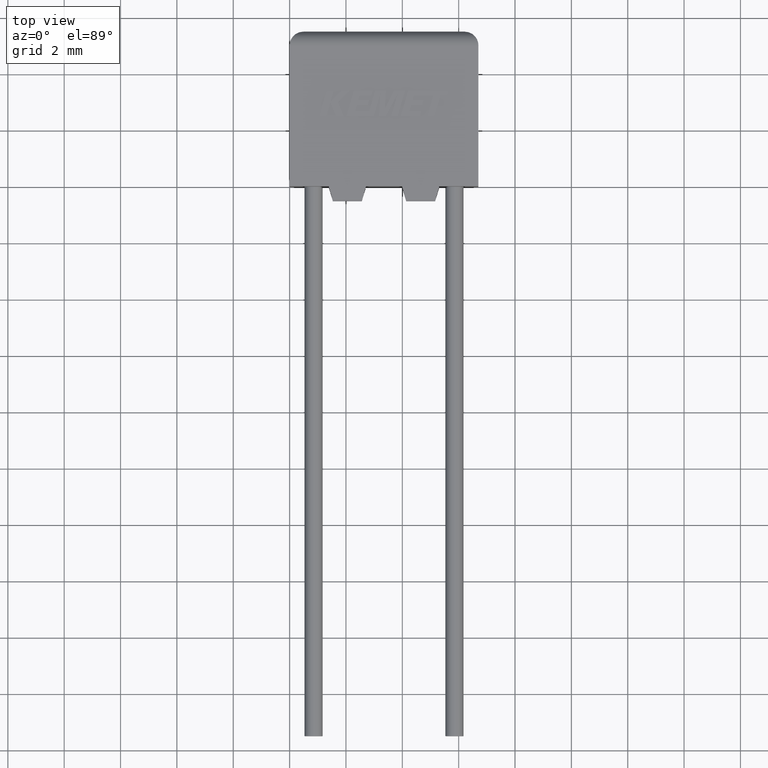
[diagram: clean part render]
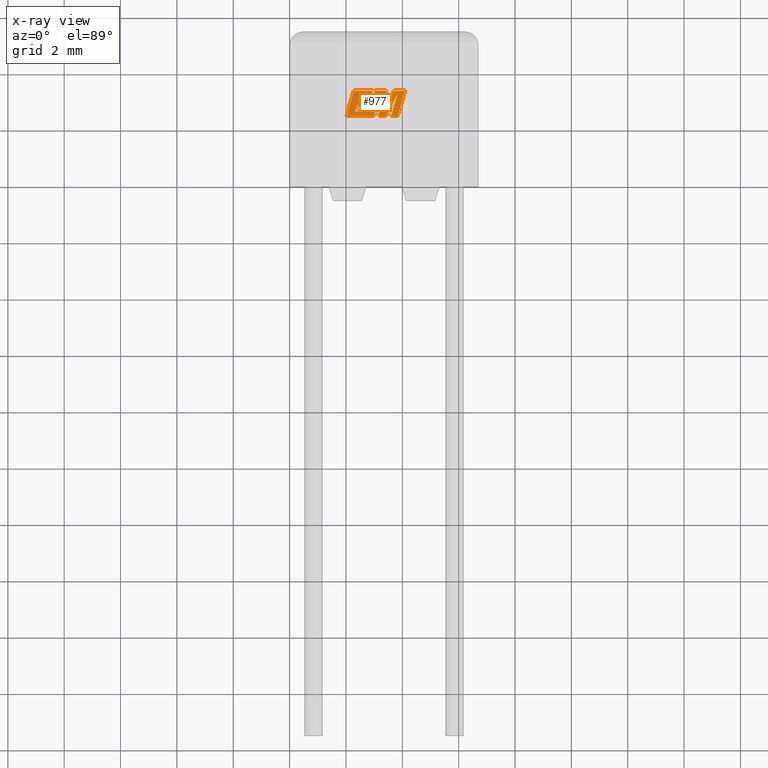
[diagram: x-ray — body ghosted, one internal face saturated and labeled with its STEP entity id]
A machine part, top view, then the same camera in x-ray: the body is ghosted and one INTERNAL B-rep face — a face not visible from any outside direction — is saturated and labeled: STEP entity #977.
In plain terms, the highlighted planar face has unit normal (0, 0, -1).
Its self-contained STEP definition (entity closure, byte-faithful):
#13 = VECTOR ( 'NONE', #297, 1000.000000000000200 ) ;
#80 = DIRECTION ( 'NONE',  ( -0.05596501978068205200, -0.9984327301130245800, 0.0000000000000000000 ) ) ;
#87 = EDGE_CURVE ( 'NONE', #1916, #1455, #217, .T. ) ;
#131 = DIRECTION ( 'NONE',  ( 0.2732148821745925000, 0.9619530280415585800, 0.0000000000000000000 ) ) ;
#139 = EDGE_CURVE ( 'NONE', #1472, #889, #768, .T. ) ;
#157 = EDGE_CURVE ( 'NONE', #2543, #2722, #3198, .T. ) ;
#207 = LINE ( 'NONE', #2785, #1728 ) ;
#212 = ORIENTED_EDGE ( 'NONE', *, *, #1229, .F. ) ;
#217 = LINE ( 'NONE', #1296, #13 ) ;
#220 = CARTESIAN_POINT ( 'NONE',  ( 2.385856126416511500, 2.882800745730594600, 2.000000000000000000 ) ) ;
#239 = EDGE_CURVE ( 'NONE', #2934, #1864, #1014, .T. ) ;
#241 = CARTESIAN_POINT ( 'NONE',  ( 3.379779903638572100, 2.744834711934450500, 2.000000000000000000 ) ) ;
#255 = EDGE_CURVE ( 'NONE', #1289, #2517, #3072, .T. ) ;
#263 = LINE ( 'NONE', #2251, #1470 ) ;
#276 = DIRECTION ( 'NONE',  ( 0.2759782365590801600, 0.9611638845408936300, 0.0000000000000000000 ) ) ;
#297 = DIRECTION ( 'NONE',  ( 0.2763139702539116300, 0.9610674221107072800, 0.0000000000000000000 ) ) ;
#305 = VECTOR ( 'NONE', #1182, 1000.000000000000000 ) ;
#310 = CARTESIAN_POINT ( 'NONE',  ( 2.772326753900947100, 2.882800745730594600, 2.000000000000000000 ) ) ;
#320 = VECTOR ( 'NONE', #375, 1000.000000000000000 ) ;
#375 = DIRECTION ( 'NONE',  ( 1.000000000000000000, 0.0000000000000000000, 0.0000000000000000000 ) ) ;
#406 = CARTESIAN_POINT ( 'NONE',  ( 2.385856126416511500, 2.882800745730594600, 2.000000000000000000 ) ) ;
#443 = DIRECTION ( 'NONE',  ( -0.4443210308329058600, -0.8958676361827030400, 0.0000000000000000000 ) ) ;
#444 = ORIENTED_EDGE ( 'NONE', *, *, #139, .F. ) ;
#458 = LINE ( 'NONE', #1558, #985 ) ;
#475 = CARTESIAN_POINT ( 'NONE',  ( 2.821296859482047600, 2.658979652557016400, 2.000000000000000000 ) ) ;
#498 = VECTOR ( 'NONE', #1617, 1000.000000000000100 ) ;
#499 = ORIENTED_EDGE ( 'NONE', *, *, #2759, .F. ) ;
#500 = CARTESIAN_POINT ( 'NONE',  ( 3.030901178550859500, 3.388197207796017200, 2.000000000000000000 ) ) ;
#502 = ORIENTED_EDGE ( 'NONE', *, *, #2988, .F. ) ;
#560 = CARTESIAN_POINT ( 'NONE',  ( 3.414412374134856900, 3.388197207796017200, 2.000000000000000000 ) ) ;
#580 = DIRECTION ( 'NONE',  ( 0.0000000000000000000, 0.0000000000000000000, -1.000000000000000000 ) ) ;
#582 = CARTESIAN_POINT ( 'NONE',  ( 3.837423811395653600, 3.293244381174459200, 2.000000000000000000 ) ) ;
#634 = CARTESIAN_POINT ( 'NONE',  ( 2.322083270285529200, 2.658979652557016400, 2.000000000000000000 ) ) ;
#655 = CARTESIAN_POINT ( 'NONE',  ( 3.217008937061694300, 3.289383508392148800, 2.000000000000000000 ) ) ;
#664 = VECTOR ( 'NONE', #2085, 1000.000000000000100 ) ;
#708 = LINE ( 'NONE', #2845, #2776 ) ;
#731 = VECTOR ( 'NONE', #1120, 1000.000000000000000 ) ;
#768 = LINE ( 'NONE', #2879, #2018 ) ;
#780 = VERTEX_POINT ( 'NONE', #2989 ) ;
#798 = DIRECTION ( 'NONE',  ( -1.000000000000000000, 0.0000000000000000000, 0.0000000000000000000 ) ) ;
#852 = CARTESIAN_POINT ( 'NONE',  ( 3.606083600019448300, 2.487649999999972400, 2.000000000000000000 ) ) ;
#863 = AXIS2_PLACEMENT_3D ( 'NONE', #1851, #580, #798 ) ;
#889 = VERTEX_POINT ( 'NONE', #1278 ) ;
#900 = DIRECTION ( 'NONE',  ( 1.000000000000000000, 0.0000000000000000000, 0.0000000000000000000 ) ) ;
#904 = CARTESIAN_POINT ( 'NONE',  ( 2.482093172426739000, 3.216782670803429100, 2.000000000000000000 ) ) ;
#914 = CARTESIAN_POINT ( 'NONE',  ( 2.275782917164932900, 3.388197207796017200, 2.000000000000000000 ) ) ;
#922 = EDGE_CURVE ( 'NONE', #2399, #2663, #207, .T. ) ;
#934 = ORIENTED_EDGE ( 'NONE', *, *, #2753, .F. ) ;
#944 = CARTESIAN_POINT ( 'NONE',  ( 2.892391682866847000, 3.216782670803429100, 2.000000000000000000 ) ) ;
#957 = ORIENTED_EDGE ( 'NONE', *, *, #2683, .F. ) ;
#961 = LINE ( 'NONE', #634, #2671 ) ;
#968 = LINE ( 'NONE', #406, #2906 ) ;
#977 = ADVANCED_FACE ( 'NONE', ( #1412 ), #2071, .T. ) ;
#985 = VECTOR ( 'NONE', #276, 1000.000000000000100 ) ;
#1012 = EDGE_CURVE ( 'NONE', #1189, #2501, #1556, .T. ) ;
#1014 = LINE ( 'NONE', #2358, #731 ) ;
#1031 = LINE ( 'NONE', #1121, #1632 ) ;
#1038 = VERTEX_POINT ( 'NONE', #1132 ) ;
#1046 = CARTESIAN_POINT ( 'NONE',  ( 3.606083600019448300, 2.487649999999972400, 2.000000000000000000 ) ) ;
#1069 = ORIENTED_EDGE ( 'NONE', *, *, #255, .F. ) ;
#1071 = DIRECTION ( 'NONE',  ( 0.2746459304916903900, 0.9615454294334477800, 0.0000000000000000000 ) ) ;
#1086 = VERTEX_POINT ( 'NONE', #2388 ) ;
#1120 = DIRECTION ( 'NONE',  ( -1.000000000000000000, 0.0000000000000000000, 0.0000000000000000000 ) ) ;
#1121 = CARTESIAN_POINT ( 'NONE',  ( 2.821296859482047600, 2.658979652557016400, 2.000000000000000000 ) ) ;
#1128 = CARTESIAN_POINT ( 'NONE',  ( 4.093840528415223700, 3.388197207796017200, 2.000000000000000000 ) ) ;
#1132 = CARTESIAN_POINT ( 'NONE',  ( 3.172069473137144600, 2.487649999999972400, 2.000000000000000000 ) ) ;
#1163 = ORIENTED_EDGE ( 'NONE', *, *, #2343, .F. ) ;
#1165 = LINE ( 'NONE', #852, #320 ) ;
#1167 = EDGE_CURVE ( 'NONE', #2722, #1916, #1165, .T. ) ;
#1182 = DIRECTION ( 'NONE',  ( -1.000000000000000000, 0.0000000000000000000, 0.0000000000000000000 ) ) ;
#1189 = VERTEX_POINT ( 'NONE', #1458 ) ;
#1199 = ORIENTED_EDGE ( 'NONE', *, *, #2490, .F. ) ;
#1205 = CARTESIAN_POINT ( 'NONE',  ( 2.433353076285480000, 3.049281032540689400, 2.000000000000000000 ) ) ;
#1215 = CARTESIAN_POINT ( 'NONE',  ( 4.093840528415223700, 3.388197207796017200, 2.000000000000000000 ) ) ;
#1225 = CARTESIAN_POINT ( 'NONE',  ( 2.482093172426739000, 3.216782670803429100, 2.000000000000000000 ) ) ;
#1229 = EDGE_CURVE ( 'NONE', #2598, #2399, #968, .T. ) ;
#1278 = CARTESIAN_POINT ( 'NONE',  ( 2.986807820066870600, 2.487649999999972400, 2.000000000000000000 ) ) ;
#1289 = VERTEX_POINT ( 'NONE', #1225 ) ;
#1296 = CARTESIAN_POINT ( 'NONE',  ( 3.834926566020465400, 2.487649999999972400, 2.000000000000000000 ) ) ;
#1335 = CARTESIAN_POINT ( 'NONE',  ( 2.433353076285480000, 3.049281032540689400, 2.000000000000000000 ) ) ;
#1360 = EDGE_LOOP ( 'NONE', ( #1199, #2792, #2407, #1639, #934, #502, #2161, #957, #444, #2208, #1858, #2994, #1069, #1163, #2944, #1732, #212, #2811, #2612, #499, #1912, #2587, #2680 ) ) ;
#1404 = VECTOR ( 'NONE', #1512, 1000.000000000000000 ) ;
#1407 = DIRECTION ( 'NONE',  ( 1.000000000000000000, 4.833865254349440500E-015, 0.0000000000000000000 ) ) ;
#1410 = DIRECTION ( 'NONE',  ( -1.000000000000000000, 0.0000000000000000000, 0.0000000000000000000 ) ) ;
#1412 = FACE_OUTER_BOUND ( 'NONE', #1360, .T. ) ;
#1422 = CARTESIAN_POINT ( 'NONE',  ( 3.834926566020465400, 2.487649999999972400, 2.000000000000000000 ) ) ;
#1455 = VERTEX_POINT ( 'NONE', #1128 ) ;
#1458 = CARTESIAN_POINT ( 'NONE',  ( 3.414412374134856900, 3.388197207796017200, 2.000000000000000000 ) ) ;
#1470 = VECTOR ( 'NONE', #3248, 1000.000000000000100 ) ;
#1472 = VERTEX_POINT ( 'NONE', #1905 ) ;
#1512 = DIRECTION ( 'NONE',  ( 1.000000000000000000, 0.0000000000000000000, 0.0000000000000000000 ) ) ;
#1546 = LINE ( 'NONE', #2839, #498 ) ;
#1556 = LINE ( 'NONE', #560, #2873 ) ;
#1558 = CARTESIAN_POINT ( 'NONE',  ( 2.986807820066870600, 2.487649999999972400, 2.000000000000000000 ) ) ;
#1579 = EDGE_CURVE ( 'NONE', #2663, #2936, #3131, .T. ) ;
#1600 = CARTESIAN_POINT ( 'NONE',  ( 3.217008937061694300, 3.289383508392148800, 2.000000000000000000 ) ) ;
#1607 = EDGE_CURVE ( 'NONE', #2517, #2934, #708, .T. ) ;
#1617 = DIRECTION ( 'NONE',  ( -0.2765379750249960500, -0.9610029908221278100, 0.0000000000000000000 ) ) ;
#1632 = VECTOR ( 'NONE', #2585, 1000.000000000000000 ) ;
#1639 = ORIENTED_EDGE ( 'NONE', *, *, #157, .F. ) ;
#1671 = VECTOR ( 'NONE', #2880, 1000.000000000000200 ) ;
#1676 = DIRECTION ( 'NONE',  ( 1.000000000000000000, 0.0000000000000000000, 0.0000000000000000000 ) ) ;
#1727 = CARTESIAN_POINT ( 'NONE',  ( 3.837423811395653600, 3.293244381174459200, 2.000000000000000000 ) ) ;
#1728 = VECTOR ( 'NONE', #1071, 1000.000000000000200 ) ;
#1732 = ORIENTED_EDGE ( 'NONE', *, *, #922, .F. ) ;
#1780 = LINE ( 'NONE', #1335, #664 ) ;
#1839 = DIRECTION ( 'NONE',  ( -0.2762517575166160700, -0.9610853065513907900, 0.0000000000000000000 ) ) ;
#1846 = EDGE_CURVE ( 'NONE', #1864, #1472, #1546, .T. ) ;
#1851 = CARTESIAN_POINT ( 'NONE',  ( 0.03041257595100179500, -2.509421354517931100, 1.999999999999999100 ) ) ;
#1858 = ORIENTED_EDGE ( 'NONE', *, *, #239, .F. ) ;
#1864 = VERTEX_POINT ( 'NONE', #914 ) ;
#1889 = CARTESIAN_POINT ( 'NONE',  ( 2.819878467922845000, 3.049281032540689400, 2.000000000000000000 ) ) ;
#1905 = CARTESIAN_POINT ( 'NONE',  ( 2.016641682812180500, 2.487649999999971500, 2.000000000000000000 ) ) ;
#1912 = ORIENTED_EDGE ( 'NONE', *, *, #1012, .F. ) ;
#1916 = VERTEX_POINT ( 'NONE', #1422 ) ;
#2018 = VECTOR ( 'NONE', #1407, 1000.000000000000000 ) ;
#2026 = VECTOR ( 'NONE', #443, 1000.000000000000100 ) ;
#2057 = VECTOR ( 'NONE', #1676, 1000.000000000000000 ) ;
#2071 = PLANE ( 'NONE',  #863 ) ;
#2085 = DIRECTION ( 'NONE',  ( 0.2793947940878288000, 0.9601763114327596100, 0.0000000000000000000 ) ) ;
#2110 = DIRECTION ( 'NONE',  ( 0.2740217765954066600, 0.9617234872620595800, 0.0000000000000000000 ) ) ;
#2161 = ORIENTED_EDGE ( 'NONE', *, *, #3069, .F. ) ;
#2208 = ORIENTED_EDGE ( 'NONE', *, *, #1846, .F. ) ;
#2222 = CARTESIAN_POINT ( 'NONE',  ( 2.819878467922845000, 3.049281032540689400, 2.000000000000000000 ) ) ;
#2251 = CARTESIAN_POINT ( 'NONE',  ( 3.412147305119253000, 2.487649999999972400, 2.000000000000000000 ) ) ;
#2274 = LINE ( 'NONE', #2370, #1671 ) ;
#2305 = LINE ( 'NONE', #500, #2893 ) ;
#2343 = EDGE_CURVE ( 'NONE', #2936, #1289, #1780, .T. ) ;
#2352 = LINE ( 'NONE', #1215, #305 ) ;
#2358 = CARTESIAN_POINT ( 'NONE',  ( 2.941077014855238800, 3.388197207796017200, 2.000000000000000000 ) ) ;
#2370 = CARTESIAN_POINT ( 'NONE',  ( 3.379779903638572100, 2.744834711934450500, 2.000000000000000000 ) ) ;
#2381 = DIRECTION ( 'NONE',  ( -0.2760118818968562100, -0.9611542233438689100, 0.0000000000000000000 ) ) ;
#2388 = CARTESIAN_POINT ( 'NONE',  ( 3.412147305119253000, 2.487649999999972400, 2.000000000000000000 ) ) ;
#2390 = LINE ( 'NONE', #2966, #2026 ) ;
#2399 = VERTEX_POINT ( 'NONE', #310 ) ;
#2407 = ORIENTED_EDGE ( 'NONE', *, *, #1167, .F. ) ;
#2421 = CARTESIAN_POINT ( 'NONE',  ( 3.030901178550859500, 3.388197207796017200, 2.000000000000000000 ) ) ;
#2490 = EDGE_CURVE ( 'NONE', #1455, #2574, #2352, .T. ) ;
#2497 = VERTEX_POINT ( 'NONE', #655 ) ;
#2501 = VERTEX_POINT ( 'NONE', #2421 ) ;
#2506 = VECTOR ( 'NONE', #1410, 1000.000000000000000 ) ;
#2517 = VERTEX_POINT ( 'NONE', #944 ) ;
#2543 = VERTEX_POINT ( 'NONE', #1727 ) ;
#2544 = DIRECTION ( 'NONE',  ( -1.000000000000000000, 0.0000000000000000000, 0.0000000000000000000 ) ) ;
#2548 = EDGE_CURVE ( 'NONE', #2574, #2764, #2390, .T. ) ;
#2574 = VERTEX_POINT ( 'NONE', #2728 ) ;
#2585 = DIRECTION ( 'NONE',  ( -1.000000000000000000, 0.0000000000000000000, 0.0000000000000000000 ) ) ;
#2587 = ORIENTED_EDGE ( 'NONE', *, *, #3199, .F. ) ;
#2598 = VERTEX_POINT ( 'NONE', #220 ) ;
#2612 = ORIENTED_EDGE ( 'NONE', *, *, #3088, .F. ) ;
#2628 = VERTEX_POINT ( 'NONE', #475 ) ;
#2663 = VERTEX_POINT ( 'NONE', #2222 ) ;
#2671 = VECTOR ( 'NONE', #2110, 1000.000000000000100 ) ;
#2680 = ORIENTED_EDGE ( 'NONE', *, *, #2548, .F. ) ;
#2683 = EDGE_CURVE ( 'NONE', #889, #2497, #458, .T. ) ;
#2695 = CARTESIAN_POINT ( 'NONE',  ( 2.941077014855238800, 3.388197207796017200, 2.000000000000000000 ) ) ;
#2722 = VERTEX_POINT ( 'NONE', #1046 ) ;
#2728 = CARTESIAN_POINT ( 'NONE',  ( 3.698866647946572600, 3.388197207796017200, 2.000000000000000000 ) ) ;
#2753 = EDGE_CURVE ( 'NONE', #1086, #2543, #263, .T. ) ;
#2759 = EDGE_CURVE ( 'NONE', #2501, #2628, #2305, .T. ) ;
#2764 = VERTEX_POINT ( 'NONE', #241 ) ;
#2776 = VECTOR ( 'NONE', #131, 1000.000000000000100 ) ;
#2777 = VECTOR ( 'NONE', #80, 1000.000000000000200 ) ;
#2785 = CARTESIAN_POINT ( 'NONE',  ( 2.772326753900947100, 2.882800745730594600, 2.000000000000000000 ) ) ;
#2792 = ORIENTED_EDGE ( 'NONE', *, *, #87, .F. ) ;
#2811 = ORIENTED_EDGE ( 'NONE', *, *, #3217, .F. ) ;
#2839 = CARTESIAN_POINT ( 'NONE',  ( 2.275782917164932900, 3.388197207796017200, 2.000000000000000000 ) ) ;
#2845 = CARTESIAN_POINT ( 'NONE',  ( 2.892391682866847000, 3.216782670803429100, 2.000000000000000000 ) ) ;
#2873 = VECTOR ( 'NONE', #2544, 1000.000000000000000 ) ;
#2879 = CARTESIAN_POINT ( 'NONE',  ( 2.826513144333987700, 2.487649999999971500, 2.000000000000000000 ) ) ;
#2880 = DIRECTION ( 'NONE',  ( 0.05375259206908267900, 0.9985542843760947300, 0.0000000000000000000 ) ) ;
#2893 = VECTOR ( 'NONE', #1839, 1000.000000000000000 ) ;
#2906 = VECTOR ( 'NONE', #900, 1000.000000000000000 ) ;
#2926 = VECTOR ( 'NONE', #2381, 1000.000000000000200 ) ;
#2934 = VERTEX_POINT ( 'NONE', #2695 ) ;
#2936 = VERTEX_POINT ( 'NONE', #1205 ) ;
#2944 = ORIENTED_EDGE ( 'NONE', *, *, #1579, .F. ) ;
#2966 = CARTESIAN_POINT ( 'NONE',  ( 3.698866647946572600, 3.388197207796017200, 2.000000000000000000 ) ) ;
#2988 = EDGE_CURVE ( 'NONE', #1038, #1086, #3137, .T. ) ;
#2989 = CARTESIAN_POINT ( 'NONE',  ( 2.322083270285529200, 2.658979652557016400, 2.000000000000000000 ) ) ;
#2990 = CARTESIAN_POINT ( 'NONE',  ( 3.172069473137144600, 2.487649999999972400, 2.000000000000000000 ) ) ;
#2994 = ORIENTED_EDGE ( 'NONE', *, *, #1607, .F. ) ;
#3069 = EDGE_CURVE ( 'NONE', #2497, #1038, #3177, .T. ) ;
#3072 = LINE ( 'NONE', #904, #2057 ) ;
#3088 = EDGE_CURVE ( 'NONE', #2628, #780, #1031, .T. ) ;
#3131 = LINE ( 'NONE', #1889, #2506 ) ;
#3137 = LINE ( 'NONE', #2990, #1404 ) ;
#3177 = LINE ( 'NONE', #1600, #2777 ) ;
#3198 = LINE ( 'NONE', #582, #2926 ) ;
#3199 = EDGE_CURVE ( 'NONE', #2764, #1189, #2274, .T. ) ;
#3217 = EDGE_CURVE ( 'NONE', #780, #2598, #961, .T. ) ;
#3248 = DIRECTION ( 'NONE',  ( 0.4668459304955212000, 0.8843386665637611400, 0.0000000000000000000 ) ) ;